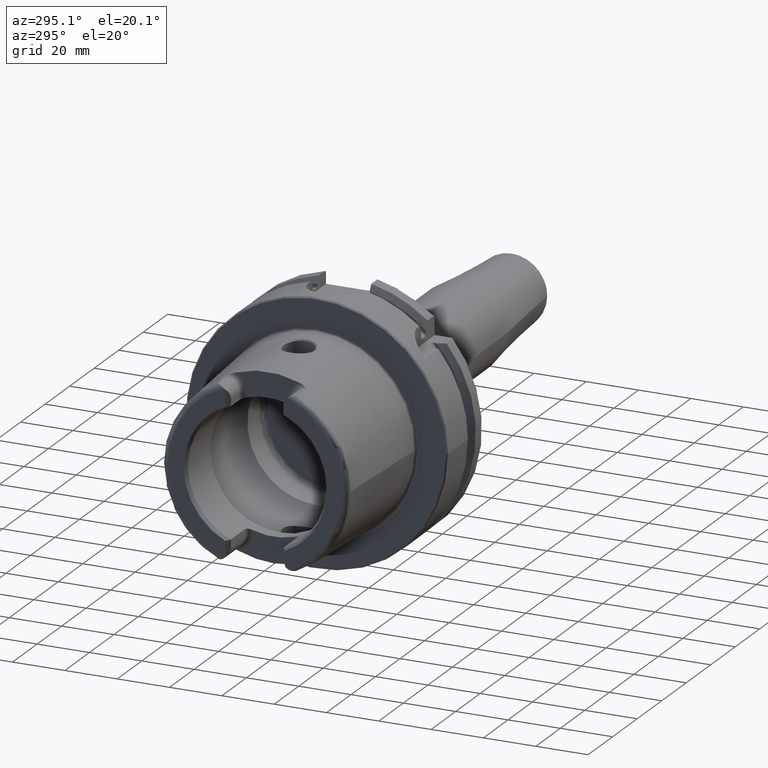
[diagram: clean part render]
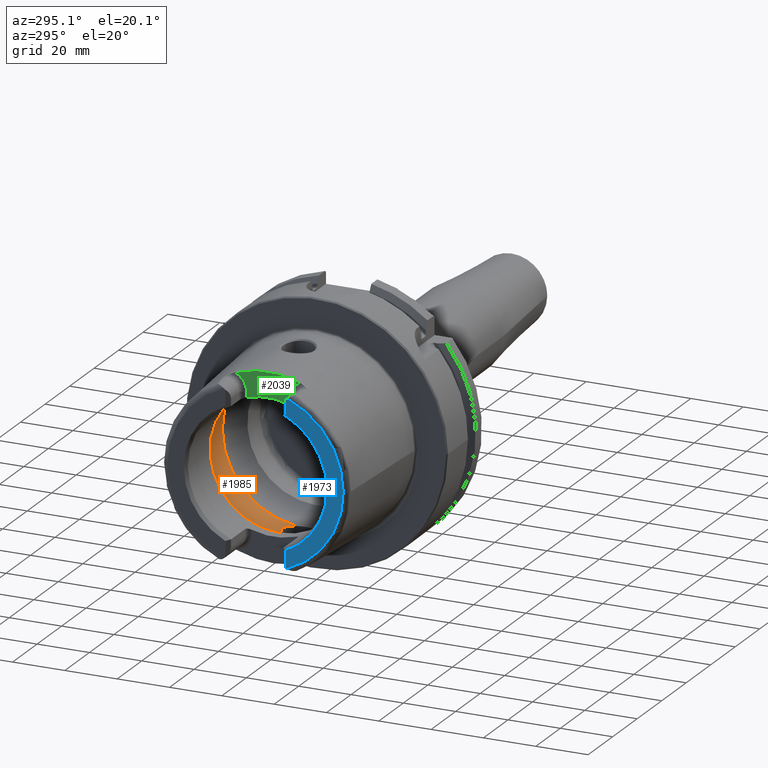
[diagram: same view with three faces highlighted in distinct colors, each labeled with its STEP entity id]
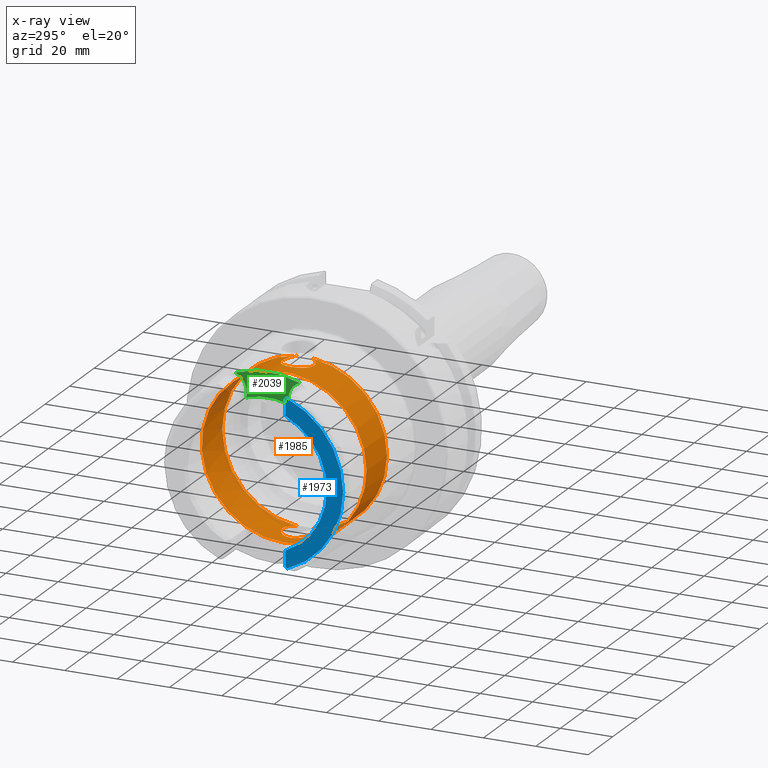
[diagram: x-ray of the same camera — body ghosted, the three highlighted faces saturated]
A machine part, auxiliary view with three faces highlighted in distinct colors.
The next image is the same camera in x-ray (body ghosted, the three faces saturated) — at least one of them is partly hidden behind the body in this view.
Their STEP definitions:

[orange] entity #1985 — the highlighted cylindrical surface (bore or boss wall) has radius 31.5 mm, axis along (-1, 0, 0).
#49=B_SPLINE_CURVE_WITH_KNOTS('',3,(#3535,#3536,#3537,#3538,#3539,#3540,
#3541,#3542,#3543,#3544,#3545,#3546,#3547,#3548,#3549,#3550,#3551,#3552,
#3553,#3554,#3555,#3556,#3557,#3558,#3559,#3560,#3561,#3562,#3563,#3564,
#3565),.UNSPECIFIED.,.F.,.F.,(4,2,2,2,2,2,2,2,2,2,2,3,2,2,4),(-2.42966289251045,
-2.26609494287567,-2.03948128472637,-1.81286762657707,-1.58625396842777,
-1.35964031027847,-1.1330370617835,-0.906433813288535,-0.679830564793567,
-0.453227316298599,-0.226613658149299,0.,0.2266136581493,0.453227316298599,
0.616795265988555),.UNSPECIFIED.);
#54=B_SPLINE_CURVE_WITH_KNOTS('',3,(#3727,#3728,#3729,#3730,#3731,#3732,
#3733,#3734,#3735,#3736,#3737,#3738,#3739,#3740,#3741,#3742,#3743,#3744,
#3745,#3746,#3747,#3748,#3749,#3750,#3751,#3752,#3753,#3754,#3755,#3756,
#3757),.UNSPECIFIED.,.F.,.F.,(4,2,2,3,2,2,2,2,2,2,2,2,2,2,4),(-0.616795265933374,
-0.453227316298598,-0.226613658149299,0.,0.2266136581493,0.453227316298599,
0.679830564793567,0.906433813288535,1.1330370617835,1.35964031027847,1.58625396842777,
1.81286762657707,2.03948128472637,2.26609494287567,2.42966289256562),
 .UNSPECIFIED.);
#182=CYLINDRICAL_SURFACE('',#2173,31.5);
#240=FACE_OUTER_BOUND('',#366,.T.);
#366=EDGE_LOOP('',(#1486,#1487,#1488,#1489,#1490,#1491,#1492,#1493,#1494));
#497=LINE('',#3773,#603);
#603=VECTOR('',#2554,31.5);
#707=CIRCLE('',#2174,31.5);
#708=CIRCLE('',#2175,31.5);
#709=CIRCLE('',#2176,31.5);
#710=CIRCLE('',#2177,31.5);
#711=CIRCLE('',#2178,31.5);
#879=VERTEX_POINT('',#3523);
#880=VERTEX_POINT('',#3534);
#883=VERTEX_POINT('',#3714);
#885=VERTEX_POINT('',#3726);
#886=VERTEX_POINT('',#3770);
#887=VERTEX_POINT('',#3772);
#888=VERTEX_POINT('',#3774);
#1107=EDGE_CURVE('',#880,#879,#49,.T.);
#1113=EDGE_CURVE('',#885,#883,#54,.T.);
#1116=EDGE_CURVE('',#886,#883,#707,.T.);
#1117=EDGE_CURVE('',#886,#887,#497,.T.);
#1118=EDGE_CURVE('',#887,#888,#708,.T.);
#1119=EDGE_CURVE('',#888,#887,#709,.T.);
#1120=EDGE_CURVE('',#880,#886,#710,.T.);
#1121=EDGE_CURVE('',#885,#879,#711,.T.);
#1486=ORIENTED_EDGE('',*,*,#1113,.T.);
#1487=ORIENTED_EDGE('',*,*,#1116,.F.);
#1488=ORIENTED_EDGE('',*,*,#1117,.T.);
#1489=ORIENTED_EDGE('',*,*,#1118,.T.);
#1490=ORIENTED_EDGE('',*,*,#1119,.T.);
#1491=ORIENTED_EDGE('',*,*,#1117,.F.);
#1492=ORIENTED_EDGE('',*,*,#1120,.F.);
#1493=ORIENTED_EDGE('',*,*,#1107,.T.);
#1494=ORIENTED_EDGE('',*,*,#1121,.F.);
#1985=ADVANCED_FACE('',(#240),#182,.F.);
#2173=AXIS2_PLACEMENT_3D('',#3769,#2550,#2551);
#2174=AXIS2_PLACEMENT_3D('',#3771,#2552,#2553);
#2175=AXIS2_PLACEMENT_3D('',#3775,#2555,#2556);
#2176=AXIS2_PLACEMENT_3D('',#3776,#2557,#2558);
#2177=AXIS2_PLACEMENT_3D('',#3777,#2559,#2560);
#2178=AXIS2_PLACEMENT_3D('',#3778,#2561,#2562);
#2550=DIRECTION('center_axis',(-1.,0.,0.));
#2551=DIRECTION('ref_axis',(0.,1.,0.));
#2552=DIRECTION('center_axis',(-1.,0.,0.));
#2553=DIRECTION('ref_axis',(0.,0.,1.));
#2554=DIRECTION('',(-1.,0.,0.));
#2555=DIRECTION('center_axis',(-1.,0.,0.));
#2556=DIRECTION('ref_axis',(0.,0.,1.));
#2557=DIRECTION('center_axis',(-1.,0.,0.));
#2558=DIRECTION('ref_axis',(0.,0.,1.));
#2559=DIRECTION('center_axis',(-1.,0.,0.));
#2560=DIRECTION('ref_axis',(0.,0.,1.));
#2561=DIRECTION('center_axis',(-1.,0.,0.));
#2562=DIRECTION('ref_axis',(0.,0.,1.));
#3523=CARTESIAN_POINT('',(-9.74679434480896,2.89893607109041,-31.3663222207471));
#3534=CARTESIAN_POINT('',(-9.74679434480896,-2.89893607109041,-31.3663222207471));
#3535=CARTESIAN_POINT('Ctrl Pts',(-9.74679434480898,-2.8989360710904,-31.3663222207471));
#3536=CARTESIAN_POINT('Ctrl Pts',(-10.0245557799842,-3.40227174537722,-31.3198029657389));
#3537=CARTESIAN_POINT('Ctrl Pts',(-10.3735944692601,-3.85887584349869,-31.2651415110221));
#3538=CARTESIAN_POINT('Ctrl Pts',(-11.289042660848,-4.77432403508655,-31.140708727458));
#3539=CARTESIAN_POINT('Ctrl Pts',(-11.9624834305428,-5.23577180141274,-31.0633803744766));
#3540=CARTESIAN_POINT('Ctrl Pts',(-13.4401908644727,-5.84865855662958,-30.9538382316308));
#3541=CARTESIAN_POINT('Ctrl Pts',(-14.2446211395023,-6.00000000000001,-30.9232921921325));
#3542=CARTESIAN_POINT('Ctrl Pts',(-15.7553788604977,-6.00000000000001,-30.9232921921325));
#3543=CARTESIAN_POINT('Ctrl Pts',(-16.5598091355273,-5.84865855662958,-30.9538382316308));
#3544=CARTESIAN_POINT('Ctrl Pts',(-18.0375165694572,-5.23577180141275,-31.0633803744766));
#3545=CARTESIAN_POINT('Ctrl Pts',(-18.710957339152,-4.77432403508655,-31.140708727458));
#3546=CARTESIAN_POINT('Ctrl Pts',(-19.7742996118461,-3.71098176239249,-31.2852440928545));
#3547=CARTESIAN_POINT('Ctrl Pts',(-20.2357665181958,-3.03753058698362,-31.3619556484746));
#3548=CARTESIAN_POINT('Ctrl Pts',(-20.8486671603361,-1.55978711209124,-31.4700797313679));
#3549=CARTESIAN_POINT('Ctrl Pts',(-21.,-0.755344161649895,-31.5));
#3550=CARTESIAN_POINT('Ctrl Pts',(-21.,0.755344161649892,-31.5));
#3551=CARTESIAN_POINT('Ctrl Pts',(-20.8486671603361,1.55978711209124,-31.4700797313679));
#3552=CARTESIAN_POINT('Ctrl Pts',(-20.2357665181958,3.03753058698362,-31.3619556484746));
#3553=CARTESIAN_POINT('Ctrl Pts',(-19.7742996118461,3.71098176239249,-31.2852440928545));
#3554=CARTESIAN_POINT('Ctrl Pts',(-18.710957339152,4.77432403508655,-31.140708727458));
#3555=CARTESIAN_POINT('Ctrl Pts',(-18.0375165694572,5.23577180141274,-31.0633803744766));
#3556=CARTESIAN_POINT('Ctrl Pts',(-16.5598091355273,5.84865855662958,-30.9538382316308));
#3557=CARTESIAN_POINT('Ctrl Pts',(-15.7553788604977,6.00000000000001,-30.9232921921325));
#3558=CARTESIAN_POINT('Ctrl Pts',(-15.,6.00000000000001,-30.9232921921325));
#3559=CARTESIAN_POINT('Ctrl Pts',(-14.2446211395023,6.00000000000001,-30.9232921921325));
#3560=CARTESIAN_POINT('Ctrl Pts',(-13.4401908644727,5.84865855662958,-30.9538382316308));
#3561=CARTESIAN_POINT('Ctrl Pts',(-11.9624834305428,5.23577180141274,-31.0633803744766));
#3562=CARTESIAN_POINT('Ctrl Pts',(-11.289042660848,4.77432403508655,-31.140708727458));
#3563=CARTESIAN_POINT('Ctrl Pts',(-10.3735944691306,3.85887584336922,-31.2651415110397));
#3564=CARTESIAN_POINT('Ctrl Pts',(-10.0245557801354,3.40227174565105,-31.3198029657135));
#3565=CARTESIAN_POINT('Ctrl Pts',(-9.74679434480898,2.8989360710904,-31.3663222207471));
#3714=CARTESIAN_POINT('',(-9.74679434480896,-2.89893607109042,31.3663222207471));
#3726=CARTESIAN_POINT('',(-9.74679434480896,2.89893607109042,31.3663222207471));
#3727=CARTESIAN_POINT('Ctrl Pts',(-9.74679434480897,2.89893607109041,31.3663222207471));
#3728=CARTESIAN_POINT('Ctrl Pts',(-10.0245557799842,3.40227174537723,31.3198029657389));
#3729=CARTESIAN_POINT('Ctrl Pts',(-10.3735944692601,3.85887584349869,31.2651415110221));
#3730=CARTESIAN_POINT('Ctrl Pts',(-11.289042660848,4.77432403508655,31.140708727458));
#3731=CARTESIAN_POINT('Ctrl Pts',(-11.9624834305428,5.23577180141274,31.0633803744766));
#3732=CARTESIAN_POINT('Ctrl Pts',(-13.4401908644727,5.84865855662958,30.9538382316308));
#3733=CARTESIAN_POINT('Ctrl Pts',(-14.2446211395023,6.00000000000001,30.9232921921325));
#3734=CARTESIAN_POINT('Ctrl Pts',(-15.,6.00000000000001,30.9232921921325));
#3735=CARTESIAN_POINT('Ctrl Pts',(-15.7553788604977,6.00000000000001,30.9232921921325));
#3736=CARTESIAN_POINT('Ctrl Pts',(-16.5598091355273,5.84865855662958,30.9538382316308));
#3737=CARTESIAN_POINT('Ctrl Pts',(-18.0375165694572,5.23577180141274,31.0633803744766));
#3738=CARTESIAN_POINT('Ctrl Pts',(-18.710957339152,4.77432403508655,31.140708727458));
#3739=CARTESIAN_POINT('Ctrl Pts',(-19.7742996118461,3.71098176239249,31.2852440928545));
#3740=CARTESIAN_POINT('Ctrl Pts',(-20.2357665181958,3.03753058698362,31.3619556484746));
#3741=CARTESIAN_POINT('Ctrl Pts',(-20.8486671603361,1.55978711209124,31.4700797313679));
#3742=CARTESIAN_POINT('Ctrl Pts',(-21.,0.755344161649892,31.5));
#3743=CARTESIAN_POINT('Ctrl Pts',(-21.,-0.755344161649894,31.5));
#3744=CARTESIAN_POINT('Ctrl Pts',(-20.8486671603361,-1.55978711209124,31.4700797313679));
#3745=CARTESIAN_POINT('Ctrl Pts',(-20.2357665181958,-3.03753058698362,31.3619556484746));
#3746=CARTESIAN_POINT('Ctrl Pts',(-19.7742996118461,-3.71098176239249,31.2852440928545));
#3747=CARTESIAN_POINT('Ctrl Pts',(-18.710957339152,-4.77432403508655,31.140708727458));
#3748=CARTESIAN_POINT('Ctrl Pts',(-18.0375165694572,-5.23577180141274,31.0633803744766));
#3749=CARTESIAN_POINT('Ctrl Pts',(-16.5598091355273,-5.84865855662958,30.9538382316308));
#3750=CARTESIAN_POINT('Ctrl Pts',(-15.7553788604977,-6.00000000000001,30.9232921921325));
#3751=CARTESIAN_POINT('Ctrl Pts',(-14.2446211395023,-6.00000000000001,30.9232921921325));
#3752=CARTESIAN_POINT('Ctrl Pts',(-13.4401908644727,-5.84865855662958,30.9538382316308));
#3753=CARTESIAN_POINT('Ctrl Pts',(-11.9624834305428,-5.23577180141274,31.0633803744766));
#3754=CARTESIAN_POINT('Ctrl Pts',(-11.289042660848,-4.77432403508655,31.140708727458));
#3755=CARTESIAN_POINT('Ctrl Pts',(-10.3735944691306,-3.85887584336922,31.2651415110397));
#3756=CARTESIAN_POINT('Ctrl Pts',(-10.0245557801353,-3.40227174565106,31.3198029657135));
#3757=CARTESIAN_POINT('Ctrl Pts',(-9.74679434480897,-2.89893607109041,31.3663222207471));
#3769=CARTESIAN_POINT('Origin',(-18.1430342013226,0.,0.));
#3770=CARTESIAN_POINT('',(-9.74679434480896,-31.5,3.85763741731416E-15));
#3771=CARTESIAN_POINT('Origin',(-9.74679434480896,0.,0.));
#3772=CARTESIAN_POINT('',(-26.5392740578363,-31.5,3.85763741731416E-15));
#3773=CARTESIAN_POINT('',(-18.1430342013226,-31.5,3.85763741731416E-15));
#3774=CARTESIAN_POINT('',(-26.5392740578363,-3.85763741731416E-15,-31.5));
#3775=CARTESIAN_POINT('Origin',(-26.5392740578363,0.,0.));
#3776=CARTESIAN_POINT('Origin',(-26.5392740578363,0.,0.));
#3777=CARTESIAN_POINT('Origin',(-9.74679434480896,0.,0.));
#3778=CARTESIAN_POINT('Origin',(-9.74679434480896,0.,0.));

[blue] entity #1973 — the highlighted planar face has unit normal (-1, 0, 0).
#105=PLANE('',#2148);
#228=FACE_OUTER_BOUND('',#352,.T.);
#352=EDGE_LOOP('',(#1406,#1407,#1408,#1409,#1410,#1411));
#480=LINE('',#3112,#586);
#482=LINE('',#3131,#588);
#586=VECTOR('',#2471,10.);
#588=VECTOR('',#2493,10.);
#692=CIRCLE('',#2144,27.3660254037844);
#695=CIRCLE('',#2149,4.88);
#696=CIRCLE('',#2150,33.6001839277785);
#697=CIRCLE('',#2151,4.88);
#839=VERTEX_POINT('',#3109);
#840=VERTEX_POINT('',#3111);
#842=VERTEX_POINT('',#3117);
#845=VERTEX_POINT('',#3125);
#846=VERTEX_POINT('',#3127);
#847=VERTEX_POINT('',#3129);
#1054=EDGE_CURVE('',#839,#840,#480,.T.);
#1057=EDGE_CURVE('',#840,#842,#692,.T.);
#1061=EDGE_CURVE('',#839,#845,#695,.T.);
#1062=EDGE_CURVE('',#846,#845,#696,.T.);
#1063=EDGE_CURVE('',#846,#847,#697,.T.);
#1064=EDGE_CURVE('',#842,#847,#482,.T.);
#1406=ORIENTED_EDGE('',*,*,#1054,.F.);
#1407=ORIENTED_EDGE('',*,*,#1061,.T.);
#1408=ORIENTED_EDGE('',*,*,#1062,.F.);
#1409=ORIENTED_EDGE('',*,*,#1063,.T.);
#1410=ORIENTED_EDGE('',*,*,#1064,.F.);
#1411=ORIENTED_EDGE('',*,*,#1057,.F.);
#1973=ADVANCED_FACE('',(#228),#105,.T.);
#2144=AXIS2_PLACEMENT_3D('',#3118,#2477,#2478);
#2148=AXIS2_PLACEMENT_3D('',#3124,#2485,#2486);
#2149=AXIS2_PLACEMENT_3D('',#3126,#2487,#2488);
#2150=AXIS2_PLACEMENT_3D('',#3128,#2489,#2490);
#2151=AXIS2_PLACEMENT_3D('',#3130,#2491,#2492);
#2471=DIRECTION('',(0.,0.,1.));
#2477=DIRECTION('center_axis',(-1.,0.,0.));
#2478=DIRECTION('ref_axis',(0.,-1.,0.));
#2485=DIRECTION('center_axis',(-1.,0.,0.));
#2486=DIRECTION('ref_axis',(0.,0.,1.));
#2487=DIRECTION('center_axis',(-1.,0.,0.));
#2488=DIRECTION('ref_axis',(0.,-1.,0.));
#2489=DIRECTION('center_axis',(1.,0.,0.));
#2490=DIRECTION('ref_axis',(0.,0.,-1.));
#2491=DIRECTION('center_axis',(-1.,0.,0.));
#2492=DIRECTION('ref_axis',(0.,0.477884921181369,-0.878422450821629));
#2493=DIRECTION('',(0.,0.,1.));
#3109=CARTESIAN_POINT('',(-50.,-11.51,-30.8899431813596));
#3111=CARTESIAN_POINT('',(-50.,-11.51,-24.8277918148307));
#3112=CARTESIAN_POINT('',(-50.,-11.51,-13.685));
#3117=CARTESIAN_POINT('',(-50.,-11.51,24.8277918148307));
#3118=CARTESIAN_POINT('Origin',(-50.,0.,0.));
#3124=CARTESIAN_POINT('Origin',(-50.,33.6001839277785,0.));
#3125=CARTESIAN_POINT('',(-50.,-12.0743049948301,-31.355757348091));
#3126=CARTESIAN_POINT('Origin',(-50.,-14.89,-27.37));
#3127=CARTESIAN_POINT('',(-50.,-12.0743049948301,31.355757348091));
#3128=CARTESIAN_POINT('Origin',(-50.,0.,0.));
#3129=CARTESIAN_POINT('',(-50.,-11.51,30.8899431813596));
#3130=CARTESIAN_POINT('Origin',(-50.,-14.89,27.37));
#3131=CARTESIAN_POINT('',(-50.,-11.51,9.));

[green] entity #2039 — the highlighted planar face has unit normal (-1, 0, 0).
#127=PLANE('',#2282);
#294=FACE_OUTER_BOUND('',#421,.T.);
#421=EDGE_LOOP('',(#1784,#1785,#1786,#1787,#1788,#1789));
#543=LINE('',#4281,#649);
#544=LINE('',#4310,#650);
#649=VECTOR('',#2758,10.);
#650=VECTOR('',#2771,10.);
#705=CIRCLE('',#2169,36.003493987976);
#748=CIRCLE('',#2255,6.88);
#750=CIRCLE('',#2258,6.88);
#762=CIRCLE('',#2283,26.5);
#875=VERTEX_POINT('',#3459);
#876=VERTEX_POINT('',#3476);
#967=VERTEX_POINT('',#4278);
#968=VERTEX_POINT('',#4280);
#969=VERTEX_POINT('',#4295);
#970=VERTEX_POINT('',#4299);
#1101=EDGE_CURVE('',#875,#876,#705,.T.);
#1239=EDGE_CURVE('',#967,#968,#543,.T.);
#1241=EDGE_CURVE('',#876,#967,#748,.T.);
#1243=EDGE_CURVE('',#969,#875,#750,.T.);
#1245=EDGE_CURVE('',#970,#969,#544,.T.);
#1266=EDGE_CURVE('',#968,#970,#762,.T.);
#1784=ORIENTED_EDGE('',*,*,#1241,.F.);
#1785=ORIENTED_EDGE('',*,*,#1101,.F.);
#1786=ORIENTED_EDGE('',*,*,#1243,.F.);
#1787=ORIENTED_EDGE('',*,*,#1245,.F.);
#1788=ORIENTED_EDGE('',*,*,#1266,.F.);
#1789=ORIENTED_EDGE('',*,*,#1239,.F.);
#2039=ADVANCED_FACE('',(#294),#127,.T.);
#2169=AXIS2_PLACEMENT_3D('',#3477,#2539,#2540);
#2255=AXIS2_PLACEMENT_3D('',#4293,#2761,#2762);
#2258=AXIS2_PLACEMENT_3D('',#4297,#2767,#2768);
#2282=AXIS2_PLACEMENT_3D('',#4368,#2823,#2824);
#2283=AXIS2_PLACEMENT_3D('',#4369,#2825,#2826);
#2539=DIRECTION('center_axis',(1.,0.,0.));
#2540=DIRECTION('ref_axis',(0.,1.,0.));
#2758=DIRECTION('',(0.,0.,-1.));
#2761=DIRECTION('center_axis',(-1.,0.,0.));
#2762=DIRECTION('ref_axis',(0.,0.564947834751706,0.82512662301574));
#2767=DIRECTION('center_axis',(-1.,0.,0.));
#2768=DIRECTION('ref_axis',(0.,-0.564947834751705,0.825126623015741));
#2771=DIRECTION('',(0.,0.,1.));
#2823=DIRECTION('center_axis',(-1.,0.,0.));
#2824=DIRECTION('ref_axis',(0.,0.,1.));
#2825=DIRECTION('center_axis',(-1.,0.,0.));
#2826=DIRECTION('ref_axis',(0.,1.,0.));
#3459=CARTESIAN_POINT('',(-40.,12.4227760464511,33.7923987701664));
#3476=CARTESIAN_POINT('',(-40.,-12.4227760464511,33.7923987701664));
#3477=CARTESIAN_POINT('Origin',(-40.,0.,0.));
#4278=CARTESIAN_POINT('',(-40.,-8.01,27.37));
#4280=CARTESIAN_POINT('',(-40.,-8.01,25.2604414054862));
#4281=CARTESIAN_POINT('',(-40.,-8.01,23.5));
#4293=CARTESIAN_POINT('Origin',(-40.,-14.89,27.37));
#4295=CARTESIAN_POINT('',(-40.,8.01,27.37));
#4297=CARTESIAN_POINT('Origin',(-40.,14.89,27.37));
#4299=CARTESIAN_POINT('',(-40.,8.01,25.2604414054862));
#4310=CARTESIAN_POINT('',(-40.,8.01,28.185));
#4368=CARTESIAN_POINT('Origin',(-40.,0.,29.));
#4369=CARTESIAN_POINT('Origin',(-40.,0.,0.));